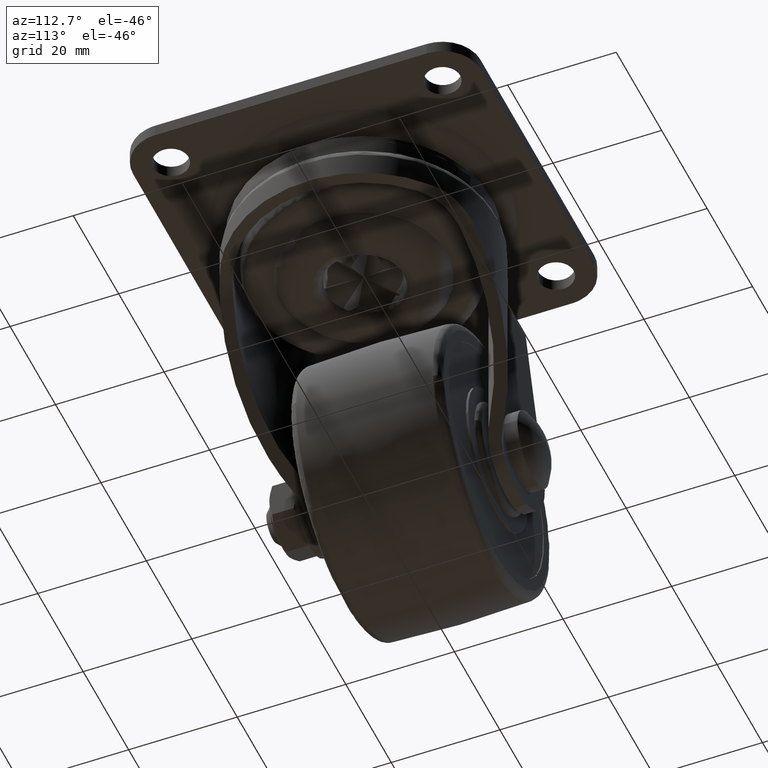
[diagram: clean part render]
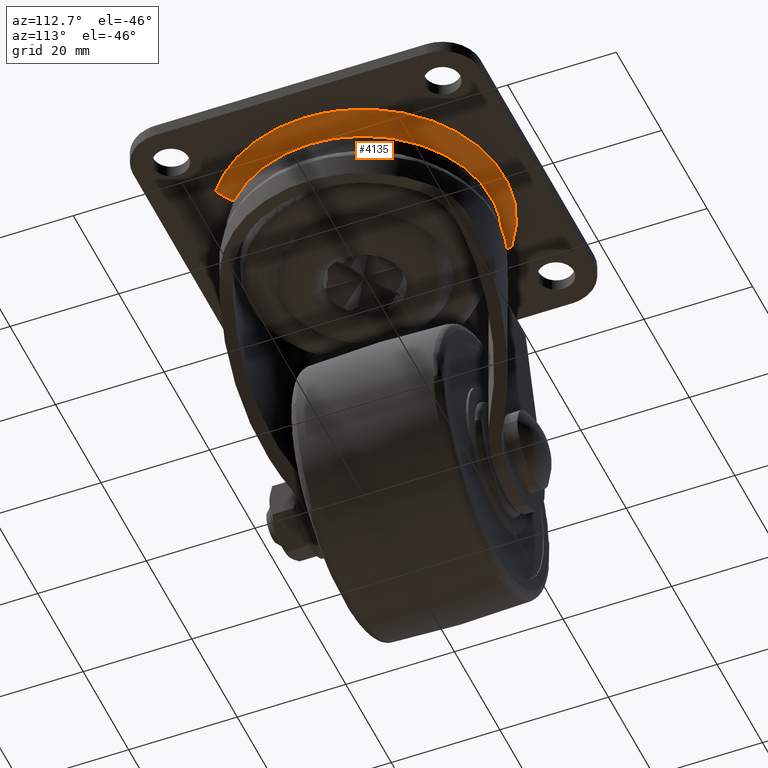
[diagram: same view with one face highlighted and labeled with its STEP entity id]
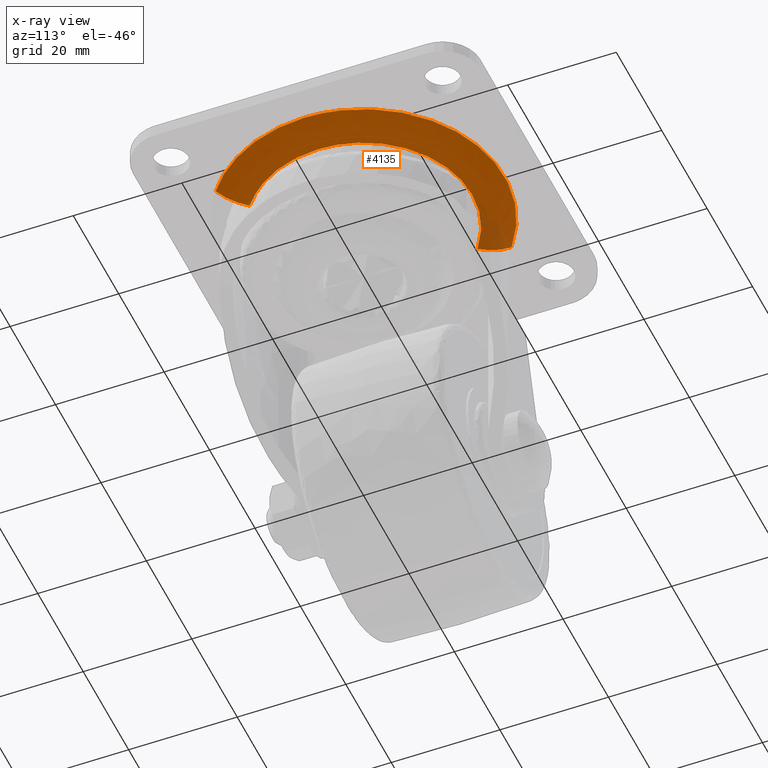
[diagram: x-ray of the same camera — body ghosted, the highlighted face saturated]
A machine part, auxiliary view. The second image highlights one B-rep face of the part: STEP entity #4135.
The next image is the same camera in x-ray: the body ghosted, the highlighted face saturated — about 6% of this face is hidden behind the body in this view.
In plain terms, the highlighted face is a freeform B-spline surface patch.
Its self-contained STEP definition (entity closure, byte-faithful):
#3744=CARTESIAN_POINT('',(-12.158605954266029,15.879807973341350,-4.300000000000096));
#3745=VERTEX_POINT('',#3744);
#3759=CARTESIAN_POINT('',(20.0,0.0,-4.300000000000096));
#3760=VERTEX_POINT('',#3759);
#3761=CARTESIAN_POINT('',(-12.158605954266031,15.879807973341350,-4.300000000000096));
#3762=CARTESIAN_POINT('',(-6.777408599093797,20.000000000387598,-4.300000000000094));
#3763=CARTESIAN_POINT('',(-2.418892E-010,20.000000000315922,-4.300000000000095));
#3764=CARTESIAN_POINT('',(19.999999999920039,20.000000000104436,-4.300000000000096));
#3765=CARTESIAN_POINT('',(20.0,0.0,-4.300000000000096));
#3773=(BOUNDED_CURVE()B_SPLINE_CURVE(2,(#3761,#3762,#3763,#3764,#3765),.UNSPECIFIED.,.F.,.U.)B_SPLINE_CURVE_WITH_KNOTS((3,2,3),(0.144938183776965,0.250000000000000,0.500000000000000),.UNSPECIFIED.)CURVE()GEOMETRIC_REPRESENTATION_ITEM()RATIONAL_B_SPLINE_CURVE((0.857279284501775,0.876912425888192,1.0,0.707106781186548,1.0))REPRESENTATION_ITEM(''));
#3774=EDGE_CURVE('',#3745,#3760,#3773,.T.);
#3776=CARTESIAN_POINT('',(12.158605954266029,-15.879807973341350,-4.300000000000096));
#3777=VERTEX_POINT('',#3776);
#3778=CARTESIAN_POINT('',(20.0,0.0,-4.300000000000096));
#3779=CARTESIAN_POINT('',(20.000000000161926,-9.875930564901744,-4.300000000000095));
#3780=CARTESIAN_POINT('',(12.158605954266031,-15.879807973341350,-4.300000000000096));
#3788=(BOUNDED_CURVE()B_SPLINE_CURVE(2,(#3778,#3779,#3780),.UNSPECIFIED.,.F.,.U.)B_SPLINE_CURVE_WITH_KNOTS((3,3),(0.500000000000000,0.644938183776966),.UNSPECIFIED.)CURVE()GEOMETRIC_REPRESENTATION_ITEM()RATIONAL_B_SPLINE_CURVE((1.0,0.830194355298355,0.857279284501775))REPRESENTATION_ITEM(''));
#3789=EDGE_CURVE('',#3760,#3777,#3788,.T.);
#4012=CARTESIAN_POINT('',(15.806187739970611,-20.643750364687008,-2.300000000134049));
#4013=VERTEX_POINT('',#4012);
#4014=CARTESIAN_POINT('',(15.806187739970611,-20.643750364687008,-2.300000000134050));
#4015=CARTESIAN_POINT('',(14.185040279644088,-18.526442635179055,-4.299999999822520));
#4016=CARTESIAN_POINT('',(12.158605954266033,-15.879807973341357,-4.300000000000096));
#4024=(BOUNDED_CURVE()B_SPLINE_CURVE(2,(#4014,#4015,#4016),.UNSPECIFIED.,.F.,.U.)B_SPLINE_CURVE_WITH_KNOTS((3,3),(-1.509113759804930,-0.495080874506753),.UNSPECIFIED.)CURVE()GEOMETRIC_REPRESENTATION_ITEM()RATIONAL_B_SPLINE_CURVE((0.931163108092268,0.883191388142959,0.930767864753005))REPRESENTATION_ITEM(''));
#4025=EDGE_CURVE('',#4013,#3777,#4024,.T.);
#4044=CARTESIAN_POINT('',(-15.806187739970611,20.643750364687008,-2.300000000134049));
#4045=VERTEX_POINT('',#4044);
#4059=CARTESIAN_POINT('',(-15.806187739970614,20.643750364687012,-2.300000000134050));
#4060=CARTESIAN_POINT('',(-14.185040279644088,18.526442635179055,-4.299999999822520));
#4061=CARTESIAN_POINT('',(-12.158605954266033,15.879807973341357,-4.300000000000096));
#4069=(BOUNDED_CURVE()B_SPLINE_CURVE(2,(#4059,#4060,#4061),.UNSPECIFIED.,.F.,.U.)B_SPLINE_CURVE_WITH_KNOTS((3,3),(-1.509113759804930,-0.495080874506753),.UNSPECIFIED.)CURVE()GEOMETRIC_REPRESENTATION_ITEM()RATIONAL_B_SPLINE_CURVE((0.931163108092268,0.883191388142959,0.930767864753005))REPRESENTATION_ITEM(''));
#4070=EDGE_CURVE('',#4045,#3745,#4069,.T.);
#4076=CARTESIAN_POINT('',(-15.957555098812483,20.841444459009004,-2.107057625929557));
#4077=CARTESIAN_POINT('',(4.883889360196517,36.798999557821482,-2.107057625929557));
#4078=CARTESIAN_POINT('',(20.841444459009004,15.957555098812483,-2.107057625929557));
#4079=CARTESIAN_POINT('',(36.798999557821482,-4.883889360196515,-2.107057625929557));
#4080=CARTESIAN_POINT('',(15.957555098812483,-20.841444459009004,-2.107057625929557));
#4081=CARTESIAN_POINT('',(-14.207530185287277,18.555815688732547,-4.411218247116060));
#4082=CARTESIAN_POINT('',(4.348285503445267,32.763345874019819,-4.411218247116060));
#4083=CARTESIAN_POINT('',(18.555815688732547,14.207530185287277,-4.411218247116060));
#4084=CARTESIAN_POINT('',(32.763345874019819,-4.348285503445264,-4.411218247116060));
#4085=CARTESIAN_POINT('',(14.207530185287277,-18.555815688732547,-4.411218247116060));
#4086=CARTESIAN_POINT('',(-11.967049810267712,15.629625115782874,-4.295034506284509));
#4087=CARTESIAN_POINT('',(3.662575305515166,27.596674926050579,-4.295034506284507));
#4088=CARTESIAN_POINT('',(15.629625115782874,11.967049810267712,-4.295034506284509));
#4089=CARTESIAN_POINT('',(27.596674926050579,-3.662575305515163,-4.295034506284507));
#4090=CARTESIAN_POINT('',(11.967049810267712,-15.629625115782874,-4.295034506284509));
#4098=(BOUNDED_SURFACE()B_SPLINE_SURFACE(2,2,((#4076,#4081,#4086),(#4077,#4082,#4087),(#4078,#4083,#4088),(#4079,#4084,#4089),(#4080,#4085,#4090)),.UNSPECIFIED.,.F.,.F.,.U.)B_SPLINE_SURFACE_WITH_KNOTS((3,2,3),(3,3),(0.0,43.490747339357164,86.981494678714313),(0.0,7.139567959161583),.UNSPECIFIED.)GEOMETRIC_REPRESENTATION_ITEM()RATIONAL_B_SPLINE_SURFACE(((0.936193878978628,0.878180361886876,0.935759146411992),(0.661989040331126,0.620967288995066,0.661681637985255),(0.936193878978628,0.878180361886876,0.935759146411992),(0.661989040331126,0.620967288995066,0.661681637985255),(0.936193878978628,0.878180361886876,0.935759146411992)))REPRESENTATION_ITEM('')SURFACE());
#4099=ORIENTED_EDGE('',*,*,#3789,.F.);
#4100=ORIENTED_EDGE('',*,*,#3774,.F.);
#4101=ORIENTED_EDGE('',*,*,#4070,.F.);
#4102=CARTESIAN_POINT('',(26.0,0.0,-2.300000000000095));
#4103=VERTEX_POINT('',#4102);
#4104=CARTESIAN_POINT('',(-15.806187739970614,20.643750364687008,-2.300000000134049));
#4105=CARTESIAN_POINT('',(-8.810631178304616,25.999999999870056,-2.300000000122841));
#4106=CARTESIAN_POINT('',(8.109940E-011,25.999999999894079,-2.300000000100145));
#4107=CARTESIAN_POINT('',(26.000000000026805,25.999999999964992,-2.300000000033168));
#4108=CARTESIAN_POINT('',(26.0,0.0,-2.300000000000095));
#4116=(BOUNDED_CURVE()B_SPLINE_CURVE(2,(#4104,#4105,#4106,#4107,#4108),.UNSPECIFIED.,.F.,.U.)B_SPLINE_CURVE_WITH_KNOTS((3,2,3),(0.144938183777301,0.250000000000000,0.500000000000000),.UNSPECIFIED.)CURVE()GEOMETRIC_REPRESENTATION_ITEM()RATIONAL_B_SPLINE_CURVE((0.857279284501901,0.876912425888585,1.0,0.707106781186547,1.0))REPRESENTATION_ITEM(''));
#4117=EDGE_CURVE('',#4045,#4103,#4116,.T.);
#4118=ORIENTED_EDGE('',*,*,#4117,.T.);
#4119=CARTESIAN_POINT('',(26.0,0.0,-2.300000000000095));
#4120=CARTESIAN_POINT('',(25.999999999945718,-12.838709734062165,-2.300000000067072));
#4121=CARTESIAN_POINT('',(15.806187739970614,-20.643750364687008,-2.300000000134049));
#4129=(BOUNDED_CURVE()B_SPLINE_CURVE(2,(#4119,#4120,#4121),.UNSPECIFIED.,.F.,.U.)B_SPLINE_CURVE_WITH_KNOTS((3,3),(0.500000000000000,0.644938183777301),.UNSPECIFIED.)CURVE()GEOMETRIC_REPRESENTATION_ITEM()RATIONAL_B_SPLINE_CURVE((1.0,0.830194355297963,0.857279284501901))REPRESENTATION_ITEM(''));
#4130=EDGE_CURVE('',#4103,#4013,#4129,.T.);
#4131=ORIENTED_EDGE('',*,*,#4130,.T.);
#4132=ORIENTED_EDGE('',*,*,#4025,.T.);
#4133=EDGE_LOOP('',(#4099,#4100,#4101,#4118,#4131,#4132));
#4134=FACE_OUTER_BOUND('',#4133,.T.);
#4135=ADVANCED_FACE('',(#4134),#4098,.T.);